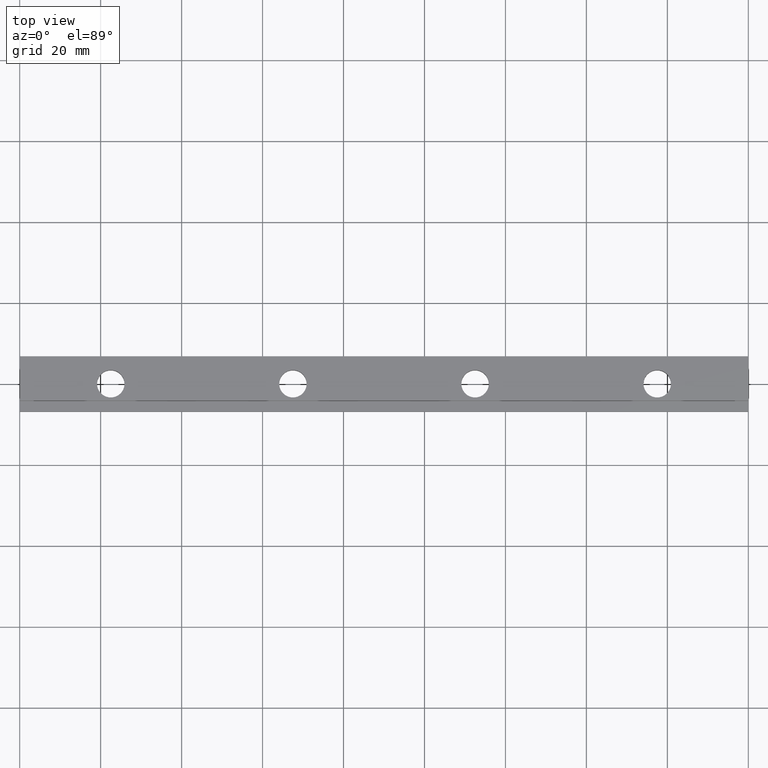
[diagram: clean part render]
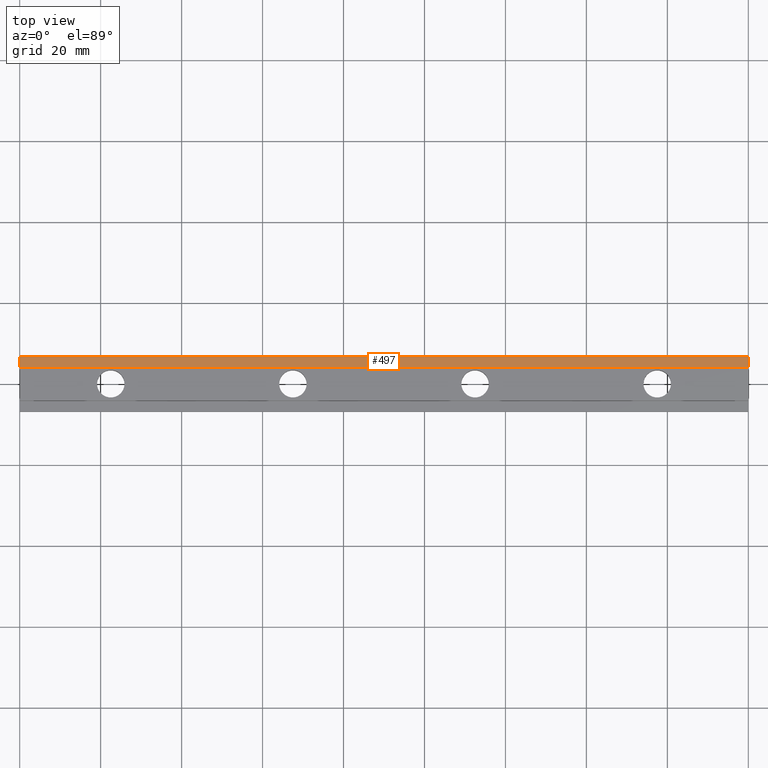
[diagram: same view with one face highlighted and labeled with its STEP entity id]
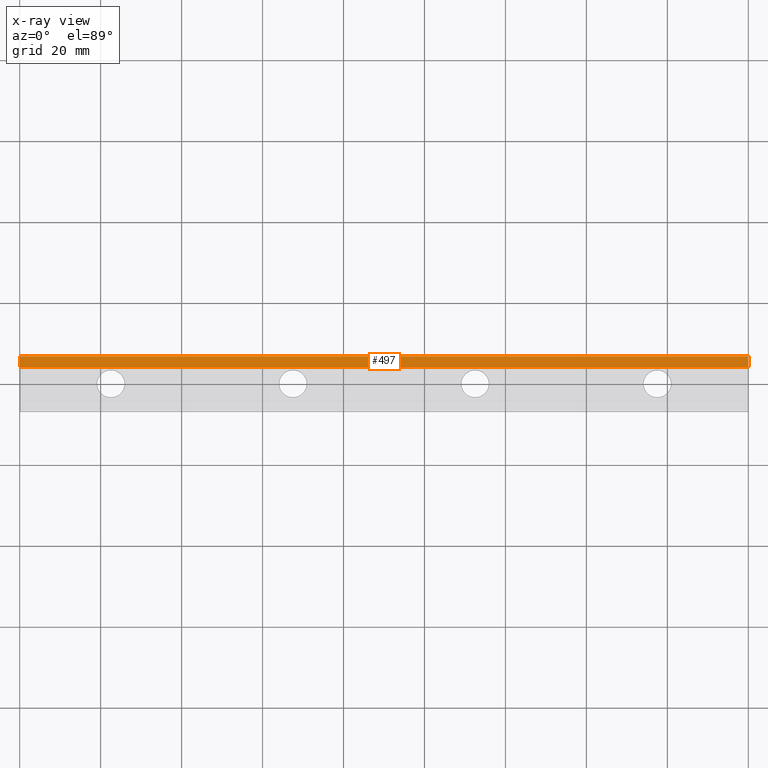
[diagram: x-ray of the same camera — body ghosted, the highlighted face saturated]
A machine part, top view. The second image highlights one B-rep face of the part: STEP entity #497.
The next image is the same camera in x-ray: the body ghosted, the highlighted face saturated — about 0% of this face is hidden behind the body in this view.
In plain terms, the highlighted planar face has unit normal (0, 0, 1).
Its self-contained STEP definition (entity closure, byte-faithful):
#175=CARTESIAN_POINT('',(3.133272E-015,6.849999999999998,4.000000000000000));
#176=VERTEX_POINT('',#175);
#185=CARTESIAN_POINT('',(180.0,6.850000000000009,4.000000000000000));
#186=VERTEX_POINT('',#185);
#187=CARTESIAN_POINT('',(180.0,6.850000000000009,4.000000000000000));
#188=DIRECTION('',(-1.0,0.0,0.0));
#189=VECTOR('',#188,180.0);
#190=LINE('',#187,#189);
#191=EDGE_CURVE('',#186,#176,#190,.T.);
#450=CARTESIAN_POINT('',(3.298599E-015,4.150000000000002,4.000000000000000));
#451=VERTEX_POINT('',#450);
#459=CARTESIAN_POINT('',(180.0,4.150000000000013,4.000000000000000));
#460=VERTEX_POINT('',#459);
#467=CARTESIAN_POINT('',(180.0,4.150000000000013,4.000000000000000));
#468=DIRECTION('',(-1.0,0.0,0.0));
#469=VECTOR('',#468,180.0);
#470=LINE('',#467,#469);
#471=EDGE_CURVE('',#460,#451,#470,.T.);
#476=CARTESIAN_POINT('',(189.0,6.985000000000007,4.000000000000000));
#477=DIRECTION('',(0.0,0.0,1.0));
#478=DIRECTION('',(-1.0,0.0,0.0));
#479=AXIS2_PLACEMENT_3D('',#476,#477,#478);
#480=PLANE('',#479);
#481=CARTESIAN_POINT('',(3.298599E-015,4.150000000000002,4.000000000000000));
#482=DIRECTION('',(0.0,1.0,0.0));
#483=VECTOR('',#482,2.699999999999996);
#484=LINE('',#481,#483);
#485=EDGE_CURVE('',#451,#176,#484,.T.);
#486=ORIENTED_EDGE('',*,*,#485,.F.);
#487=ORIENTED_EDGE('',*,*,#471,.F.);
#488=CARTESIAN_POINT('',(180.0,4.150000000000013,4.000000000000000));
#489=DIRECTION('',(0.0,1.0,0.0));
#490=VECTOR('',#489,2.699999999999996);
#491=LINE('',#488,#490);
#492=EDGE_CURVE('',#460,#186,#491,.T.);
#493=ORIENTED_EDGE('',*,*,#492,.T.);
#494=ORIENTED_EDGE('',*,*,#191,.T.);
#495=EDGE_LOOP('',(#486,#487,#493,#494));
#496=FACE_OUTER_BOUND('',#495,.T.);
#497=ADVANCED_FACE('',(#496),#480,.T.);